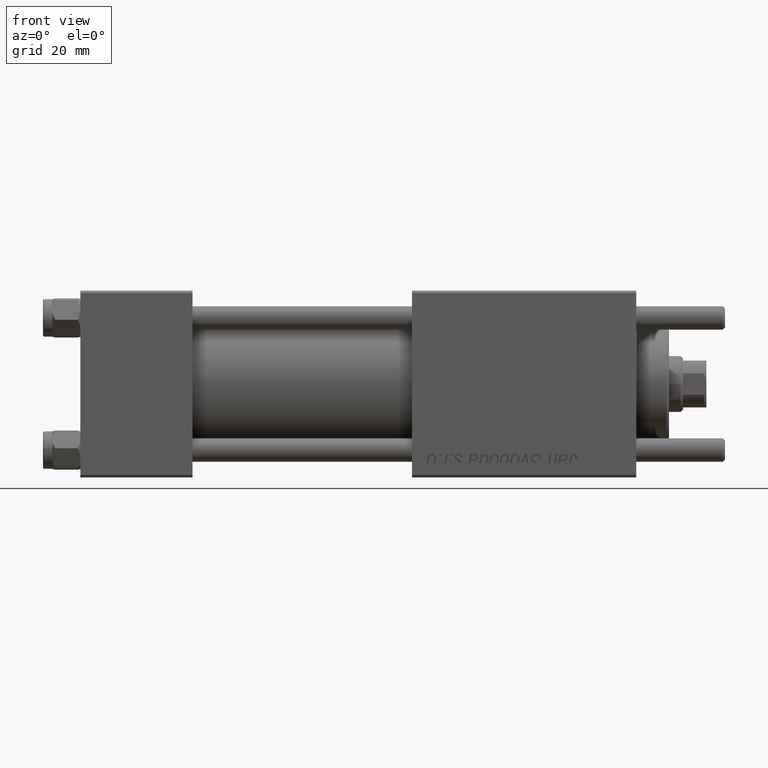
[diagram: clean part render]
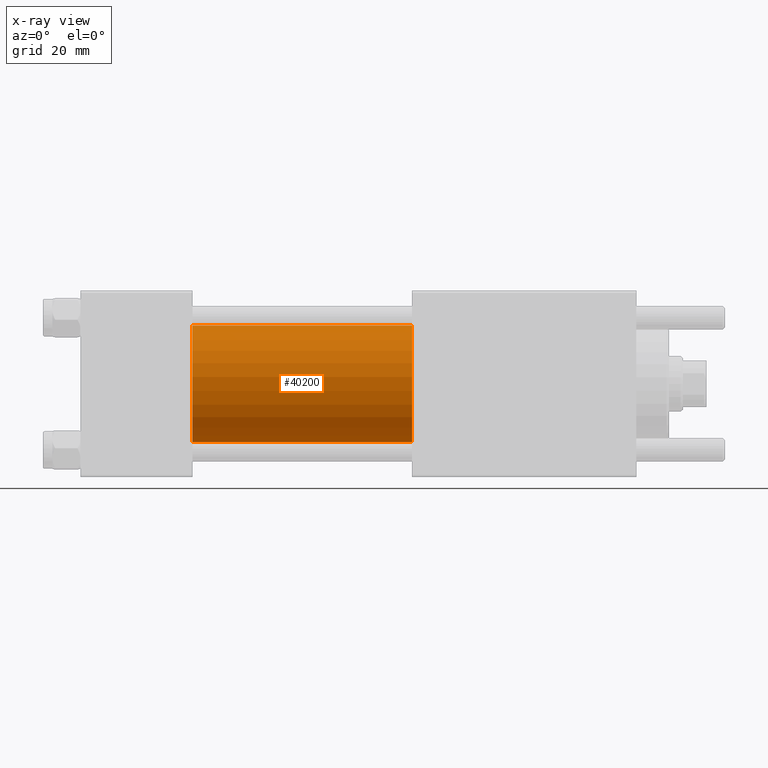
[diagram: x-ray — body ghosted, one internal face saturated and labeled with its STEP entity id]
A machine part, front view, then the same camera in x-ray: the body is ghosted and one INTERNAL B-rep face — a face not visible from any outside direction — is saturated and labeled: STEP entity #40200.
In plain terms, the highlighted cylindrical surface (partial cylindrical patch) has radius 12.5 mm, axis along (-1, -0, -0).
Its self-contained STEP definition (entity closure, byte-faithful):
#1339 = ORIENTED_EDGE ( 'NONE', *, *, #37853, .T. ) ;
#6284 = VECTOR ( 'NONE', #19905, 1000.000000000000000 ) ;
#6533 = EDGE_CURVE ( 'NONE', #13820, #43278, #7569, .T. ) ;
#6564 = CIRCLE ( 'NONE', #50529, 12.49999999999999645 ) ;
#7569 = LINE ( 'NONE', #41708, #6284 ) ;
#9149 = DIRECTION ( 'NONE',  ( 0.000000000000000000, 0.000000000000000000, -1.000000000000000000 ) ) ;
#10279 = LINE ( 'NONE', #15928, #51719 ) ;
#13400 = AXIS2_PLACEMENT_3D ( 'NONE', #48997, #14313, #32051 ) ;
#13820 = VERTEX_POINT ( 'NONE', #18990 ) ;
#14038 = DIRECTION ( 'NONE',  ( 1.000000000000000000, 0.000000000000000000, 0.000000000000000000 ) ) ;
#14313 = DIRECTION ( 'NONE',  ( -1.000000000000000000, -0.000000000000000000, -0.000000000000000000 ) ) ;
#14393 = VERTEX_POINT ( 'NONE', #36705 ) ;
#15928 = CARTESIAN_POINT ( 'NONE',  ( 71.00000000000001421, -1.071276715031019515E-15, -12.49999999999999645 ) ) ;
#16060 = CIRCLE ( 'NONE', #56386, 12.49999999999999645 ) ;
#18720 = DIRECTION ( 'NONE',  ( 1.000000000000000000, 0.000000000000000000, 0.000000000000000000 ) ) ;
#18990 = CARTESIAN_POINT ( 'NONE',  ( 71.00000000000001421, -2.602085213965210642E-15, 12.49999999999999645 ) ) ;
#19905 = DIRECTION ( 'NONE',  ( -1.000000000000000000, -0.000000000000000000, -0.000000000000000000 ) ) ;
#20104 = EDGE_CURVE ( 'NONE', #43278, #14393, #6564, .T. ) ;
#20503 = DIRECTION ( 'NONE',  ( -1.000000000000000000, -0.000000000000000000, -0.000000000000000000 ) ) ;
#28657 = CARTESIAN_POINT ( 'NONE',  ( 24.00000000000000000, -2.602085213965210642E-15, 12.49999999999999645 ) ) ;
#28855 = EDGE_LOOP ( 'NONE', ( #1339, #35376, #30854, #35249 ) ) ;
#30854 = ORIENTED_EDGE ( 'NONE', *, *, #20104, .F. ) ;
#32051 = DIRECTION ( 'NONE',  ( 0.000000000000000000, 0.000000000000000000, 1.000000000000000000 ) ) ;
#34383 = EDGE_CURVE ( 'NONE', #47435, #14393, #10279, .T. ) ;
#35249 = ORIENTED_EDGE ( 'NONE', *, *, #6533, .F. ) ;
#35376 = ORIENTED_EDGE ( 'NONE', *, *, #34383, .T. ) ;
#36207 = DIRECTION ( 'NONE',  ( 0.000000000000000000, 0.000000000000000000, -1.000000000000000000 ) ) ;
#36705 = CARTESIAN_POINT ( 'NONE',  ( 24.00000000000000000, -1.071276715031019515E-15, -12.49999999999999645 ) ) ;
#37853 = EDGE_CURVE ( 'NONE', #13820, #47435, #16060, .T. ) ;
#40200 = ADVANCED_FACE ( 'NONE', ( #49844 ), #40677, .F. ) ;
#40677 = CYLINDRICAL_SURFACE ( 'NONE', #13400, 12.49999999999999645 ) ;
#41708 = CARTESIAN_POINT ( 'NONE',  ( 71.00000000000001421, -2.602085213965210642E-15, 12.49999999999999645 ) ) ;
#43278 = VERTEX_POINT ( 'NONE', #28657 ) ;
#44800 = CARTESIAN_POINT ( 'NONE',  ( 24.00000000000000000, -2.602085213965210642E-15, 0.000000000000000000 ) ) ;
#47435 = VERTEX_POINT ( 'NONE', #51083 ) ;
#48997 = CARTESIAN_POINT ( 'NONE',  ( 71.00000000000001421, -2.602085213965210642E-15, 0.000000000000000000 ) ) ;
#49844 = FACE_OUTER_BOUND ( 'NONE', #28855, .T. ) ;
#50529 = AXIS2_PLACEMENT_3D ( 'NONE', #44800, #18720, #36207 ) ;
#51083 = CARTESIAN_POINT ( 'NONE',  ( 71.00000000000001421, -1.071276715031019515E-15, -12.49999999999999645 ) ) ;
#51719 = VECTOR ( 'NONE', #20503, 1000.000000000000000 ) ;
#53303 = CARTESIAN_POINT ( 'NONE',  ( 71.00000000000001421, -2.602085213965210642E-15, 0.000000000000000000 ) ) ;
#56386 = AXIS2_PLACEMENT_3D ( 'NONE', #53303, #14038, #9149 ) ;